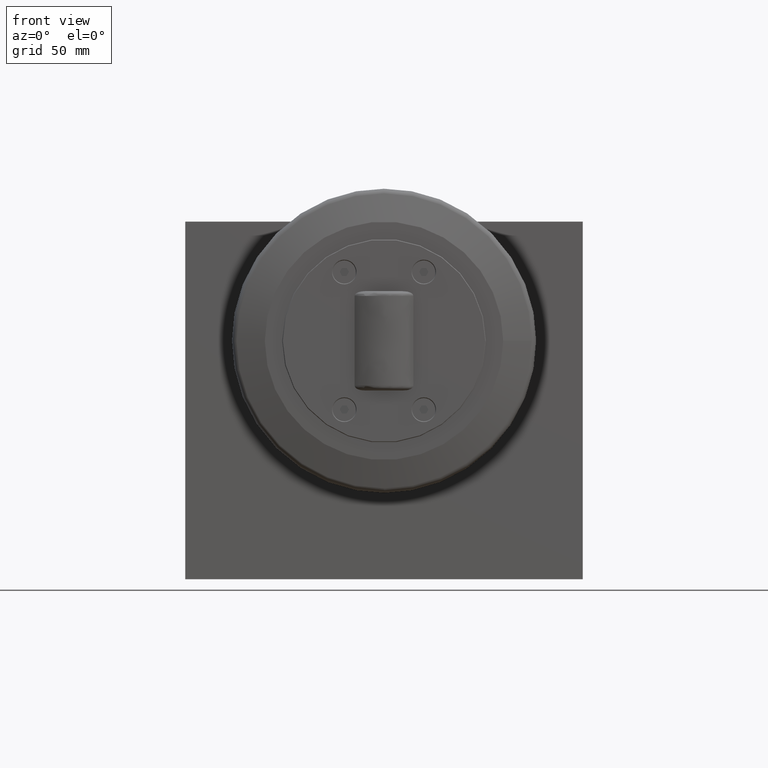
[diagram: clean part render]
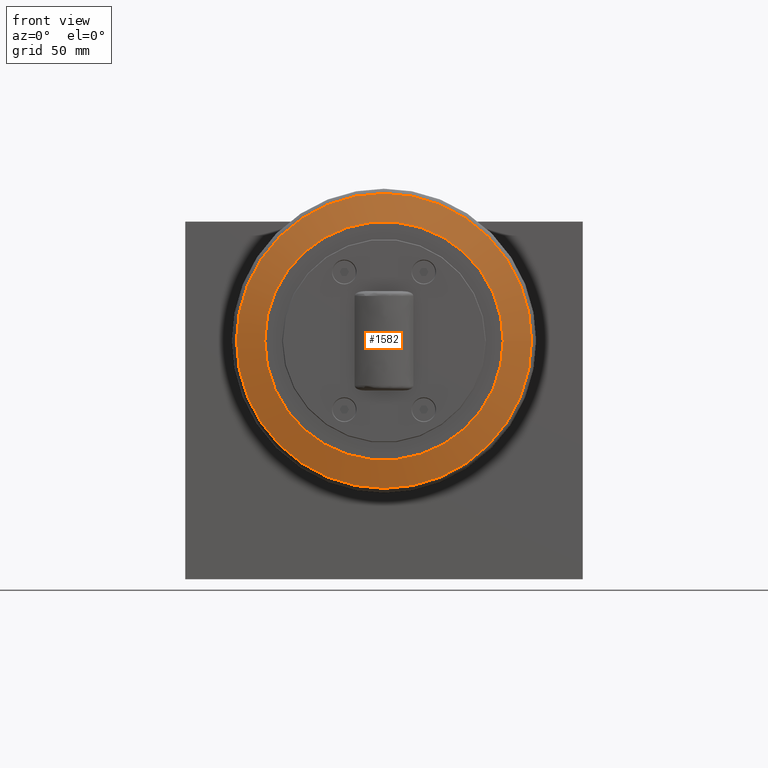
[diagram: same view with one face highlighted and labeled with its STEP entity id]
A machine part, front view. The second image highlights one B-rep face of the part: STEP entity #1582.
In plain terms, the highlighted conical surface has half-angle 75 deg.
Its self-contained STEP definition (entity closure, byte-faithful):
#21=CONICAL_SURFACE('',#1715,68.2204284062319,1.30899693899575);
#93=CIRCLE('',#1706,74.2432249354317);
#94=CIRCLE('',#1707,74.2432249354317);
#98=CIRCLE('',#1711,74.2432249354317);
#102=CIRCLE('',#1716,60.);
#103=CIRCLE('',#1717,60.);
#182=FACE_OUTER_BOUND('',#273,.T.);
#273=EDGE_LOOP('',(#1199,#1200,#1201,#1202,#1203,#1204,#1205));
#420=LINE('',#2521,#570);
#570=VECTOR('',#2018,68.2204284062319);
#711=VERTEX_POINT('',#2473);
#712=VERTEX_POINT('',#2474);
#713=VERTEX_POINT('',#2476);
#718=VERTEX_POINT('',#2517);
#719=VERTEX_POINT('',#2518);
#897=EDGE_CURVE('',#711,#712,#93,.T.);
#898=EDGE_CURVE('',#712,#713,#94,.T.);
#902=EDGE_CURVE('',#713,#711,#98,.T.);
#906=EDGE_CURVE('',#718,#719,#102,.T.);
#907=EDGE_CURVE('',#719,#718,#103,.T.);
#908=EDGE_CURVE('',#719,#712,#420,.T.);
#1199=ORIENTED_EDGE('',*,*,#906,.F.);
#1200=ORIENTED_EDGE('',*,*,#907,.F.);
#1201=ORIENTED_EDGE('',*,*,#908,.T.);
#1202=ORIENTED_EDGE('',*,*,#897,.F.);
#1203=ORIENTED_EDGE('',*,*,#902,.F.);
#1204=ORIENTED_EDGE('',*,*,#898,.F.);
#1205=ORIENTED_EDGE('',*,*,#908,.F.);
#1582=ADVANCED_FACE('',(#182),#21,.T.);
#1706=AXIS2_PLACEMENT_3D('',#2475,#1994,#1995);
#1707=AXIS2_PLACEMENT_3D('',#2477,#1996,#1997);
#1711=AXIS2_PLACEMENT_3D('',#2483,#2004,#2005);
#1715=AXIS2_PLACEMENT_3D('',#2516,#2012,#2013);
#1716=AXIS2_PLACEMENT_3D('',#2519,#2014,#2015);
#1717=AXIS2_PLACEMENT_3D('',#2520,#2016,#2017);
#1994=DIRECTION('center_axis',(2.39655015876115E-16,1.,-6.88904874983737E-17));
#1995=DIRECTION('ref_axis',(1.,-2.39655015876115E-16,4.16333634234434E-16));
#1996=DIRECTION('center_axis',(2.39655015876115E-16,1.,-6.88904874983737E-17));
#1997=DIRECTION('ref_axis',(1.,-2.39655015876115E-16,4.16333634234434E-16));
#2004=DIRECTION('center_axis',(2.39655015876115E-16,1.,-6.88904874983737E-17));
#2005=DIRECTION('ref_axis',(1.,-2.39655015876115E-16,4.16333634234434E-16));
#2012=DIRECTION('center_axis',(2.42488790685022E-16,1.,-6.88904874983737E-17));
#2013=DIRECTION('ref_axis',(-1.,2.36343623346796E-16,-4.16333634234434E-16));
#2014=DIRECTION('center_axis',(-2.42488790685022E-16,-1.,6.88904874983737E-17));
#2015=DIRECTION('ref_axis',(-1.,2.36343623346796E-16,-4.16333634234434E-16));
#2016=DIRECTION('center_axis',(-2.42488790685022E-16,-1.,6.88904874983737E-17));
#2017=DIRECTION('ref_axis',(-1.,2.36343623346796E-16,-4.16333634234434E-16));
#2018=DIRECTION('',(0.965925826289069,0.258819045102517,5.02609036606718E-16));
#2473=CARTESIAN_POINT('',(25.7567750645683,-49.3835393809363,120.));
#2474=CARTESIAN_POINT('',(174.243224935432,-49.3835393809363,120.));
#2475=CARTESIAN_POINT('Origin',(100.,-49.3835393809363,120.));
#2476=CARTESIAN_POINT('',(100.,-49.3835393809363,45.7567750645684));
#2477=CARTESIAN_POINT('Origin',(100.,-49.3835393809363,120.));
#2483=CARTESIAN_POINT('Origin',(100.,-49.3835393809363,120.));
#2516=CARTESIAN_POINT('Origin',(100.,-50.9973428471123,120.));
#2517=CARTESIAN_POINT('',(40.,-53.2,120.));
#2518=CARTESIAN_POINT('',(160.,-53.2,120.));
#2519=CARTESIAN_POINT('Origin',(100.,-53.2,120.));
#2520=CARTESIAN_POINT('Origin',(100.,-53.2,120.));
#2521=CARTESIAN_POINT('',(168.220428406232,-50.9973428471123,120.));